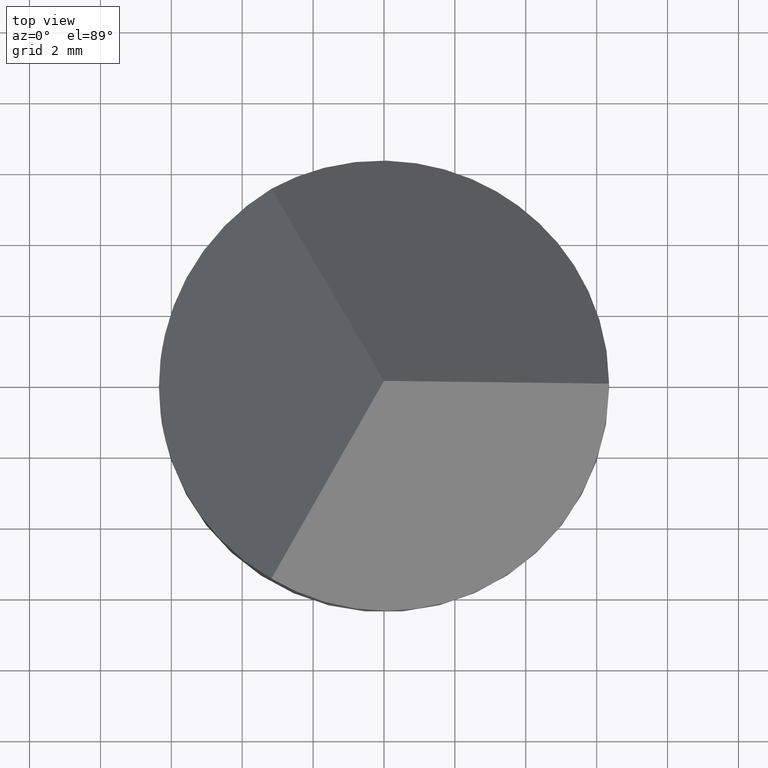
[diagram: clean part render]
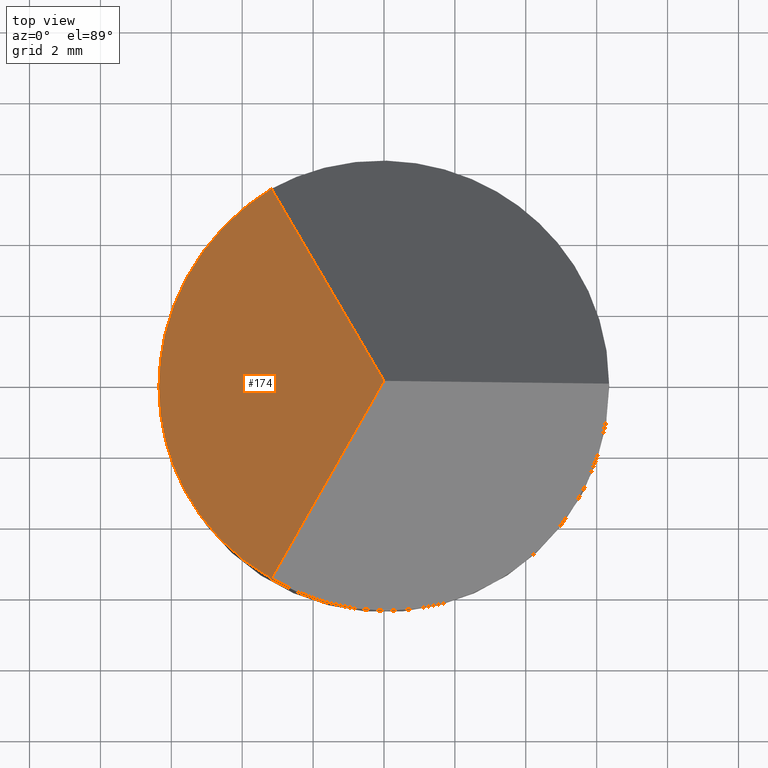
[diagram: same view with one face highlighted and labeled with its STEP entity id]
A machine part, top view. The second image highlights one B-rep face of the part: STEP entity #174.
In plain terms, the highlighted planar face has unit normal (0.8164, 0, -0.5774).
Its self-contained STEP definition (entity closure, byte-faithful):
#2 = CARTESIAN_POINT ( 'NONE',  ( -6.349999999999999600, 0.0000000000000000000, 1.181608968241170100 ) ) ;
#4 =( BOUNDED_CURVE ( )  B_SPLINE_CURVE ( 3, ( #90, #62, #255, #232 ),
 .UNSPECIFIED., .F., .F. ) 
 B_SPLINE_CURVE_WITH_KNOTS ( ( 4, 4 ),
 ( 0.0000000000000000000, 1.047197551196596100 ),
 .UNSPECIFIED. ) 
 CURVE ( )  GEOMETRIC_REPRESENTATION_ITEM ( )  RATIONAL_B_SPLINE_CURVE ( ( 1.000000000000000000, 0.9106836025229593200, 0.9106836025229593200, 1.000000000000000000 ) ) 
 REPRESENTATION_ITEM ( '' )  );
#6 = CARTESIAN_POINT ( 'NONE',  ( 7.073520084914156000, -12.25169617543019700, 20.16139043989909000 ) ) ;
#18 = VECTOR ( 'NONE', #271, 999.9999999999998900 ) ;
#23 = VERTEX_POINT ( 'NONE', #175 ) ;
#31 = CARTESIAN_POINT ( 'NONE',  ( -8.673617379884035500E-016, -4.004885026051589500E-016, 10.16000000000000200 ) ) ;
#51 = DIRECTION ( 'NONE',  ( 0.4082765531884057800, -0.7071557336614134900, 0.5772703218305811300 ) ) ;
#53 = PLANE ( 'NONE',  #197 ) ;
#62 = CARTESIAN_POINT ( 'NONE',  ( -6.349999999999998800, 2.324261314031181000, 1.181608968241169900 ) ) ;
#74 = VECTOR ( 'NONE', #51, 1000.000000000000100 ) ;
#76 = EDGE_CURVE ( 'NONE', #122, #107, #81, .T. ) ;
#81 = LINE ( 'NONE', #228, #18 ) ;
#90 = CARTESIAN_POINT ( 'NONE',  ( -6.349999999999999600, 0.0000000000000000000, 1.181608968241170100 ) ) ;
#95 = ORIENTED_EDGE ( 'NONE', *, *, #291, .F. ) ;
#98 = FACE_OUTER_BOUND ( 'NONE', #249, .T. ) ;
#102 = CARTESIAN_POINT ( 'NONE',  ( 0.0000000000000000000, -24.50000000000000000, 10.16000000000000000 ) ) ;
#103 = CARTESIAN_POINT ( 'NONE',  ( -5.187869342984408900, -4.337130657015589600, 2.824768569608221600 ) ) ;
#107 = VERTEX_POINT ( 'NONE', #31 ) ;
#108 = CARTESIAN_POINT ( 'NONE',  ( -6.349999999999999600, -2.324261314031182300, 1.181608968241170100 ) ) ;
#109 =( BOUNDED_CURVE ( )  B_SPLINE_CURVE ( 3, ( #176, #103, #108, #2 ),
 .UNSPECIFIED., .F., .F. ) 
 B_SPLINE_CURVE_WITH_KNOTS ( ( 4, 4 ),
 ( 5.235987755982989700, 6.283185307179586200 ),
 .UNSPECIFIED. ) 
 CURVE ( )  GEOMETRIC_REPRESENTATION_ITEM ( )  RATIONAL_B_SPLINE_CURVE ( ( 1.000000000000000000, 0.9106836025229592100, 0.9106836025229592100, 1.000000000000000000 ) ) 
 REPRESENTATION_ITEM ( '' )  );
#112 = VERTEX_POINT ( 'NONE', #125 ) ;
#116 = ORIENTED_EDGE ( 'NONE', *, *, #164, .F. ) ;
#122 = VERTEX_POINT ( 'NONE', #226 ) ;
#125 = CARTESIAN_POINT ( 'NONE',  ( -6.349999999999999600, 0.0000000000000000000, 1.181608968241170100 ) ) ;
#158 = EDGE_CURVE ( 'NONE', #23, #107, #268, .T. ) ;
#164 = EDGE_CURVE ( 'NONE', #122, #112, #109, .T. ) ;
#174 = ADVANCED_FACE ( 'NONE', ( #98 ), #53, .F. ) ;
#175 = CARTESIAN_POINT ( 'NONE',  ( -3.175000000000005200, 5.499261314031177700, 5.670804484120573400 ) ) ;
#176 = CARTESIAN_POINT ( 'NONE',  ( -3.175000000000009600, -5.499261314031189200, 5.670804484120572500 ) ) ;
#197 = AXIS2_PLACEMENT_3D ( 'NONE', #102, #201, #244 ) ;
#201 = DIRECTION ( 'NONE',  ( 0.8164400437365592100, 0.0000000000000000000, -0.5774302165486713300 ) ) ;
#226 = CARTESIAN_POINT ( 'NONE',  ( -3.175000000000009600, -5.499261314031189200, 5.670804484120572500 ) ) ;
#228 = CARTESIAN_POINT ( 'NONE',  ( -7.073520084914155100, -12.25169617543020500, 0.1586095601009106200 ) ) ;
#232 = CARTESIAN_POINT ( 'NONE',  ( -3.175000000000005200, 5.499261314031177700, 5.670804484120573400 ) ) ;
#240 = ORIENTED_EDGE ( 'NONE', *, *, #158, .F. ) ;
#244 = DIRECTION ( 'NONE',  ( -0.5774302165486712200, 0.0000000000000000000, -0.8164400437365591000 ) ) ;
#249 = EDGE_LOOP ( 'NONE', ( #116, #293, #240, #95 ) ) ;
#255 = CARTESIAN_POINT ( 'NONE',  ( -5.187869342984409800, 4.337130657015586100, 2.824768569608218100 ) ) ;
#268 = LINE ( 'NONE', #6, #74 ) ;
#271 = DIRECTION ( 'NONE',  ( 0.4082765531884057200, 0.7071557336614138200, 0.5772703218305810200 ) ) ;
#291 = EDGE_CURVE ( 'NONE', #112, #23, #4, .T. ) ;
#293 = ORIENTED_EDGE ( 'NONE', *, *, #76, .T. ) ;